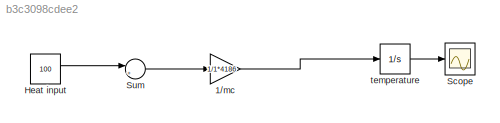
MODEL slx_b3c3098cdee2
KIND model
CONFIG AbsTol = auto
CONFIG EnableMultiTasking = off
CONFIG FixedStep = auto
CONFIG MaxStep = auto
CONFIG MinStep = auto
CONFIG RelTol = 1e-3
CONFIG SampleTimeConstraint = Unconstrained
CONFIG SolverName = VariableStepAuto
CONFIG StartTime = 0.0
CONFIG StopTime = 10
BLOCK [Gain] 1//mc
  Gain = 1/1*4186
BLOCK [Constant] Heat input
  Value = 100
BLOCK [Scope] Scope
  Floating = off
  NumInputPorts = 1
  ScopeSpecificationString = Simulink.scopes.TimeScopeBlockCfg('CurrentConfiguration', extmgr.ConfigurationSet(extmgr.Configuration('Core','General UI',true),extmgr.Configuration('Core','Source UI',true),extmgr.Configuration('Sources','WiredSimulink',true),extmgr.Configuration('Visuals','Time Domain',true,'SerializedDisplays',{struct('MinYLimReal','317784.68239','MaxYLimReal','1642847.37713','YLabelReal','','MinYLimMag','3177...<+1535ch>
BLOCK [Sum] Sum
  Inputs = |+-
BLOCK [Integrator] temperature
  InitialCondition = 25
LINE 1//mc:1 -> temperature:1
LINE Heat input:1 -> Sum:1
LINE Sum:1 -> 1//mc:1
LINE temperature:1 -> Scope:1
